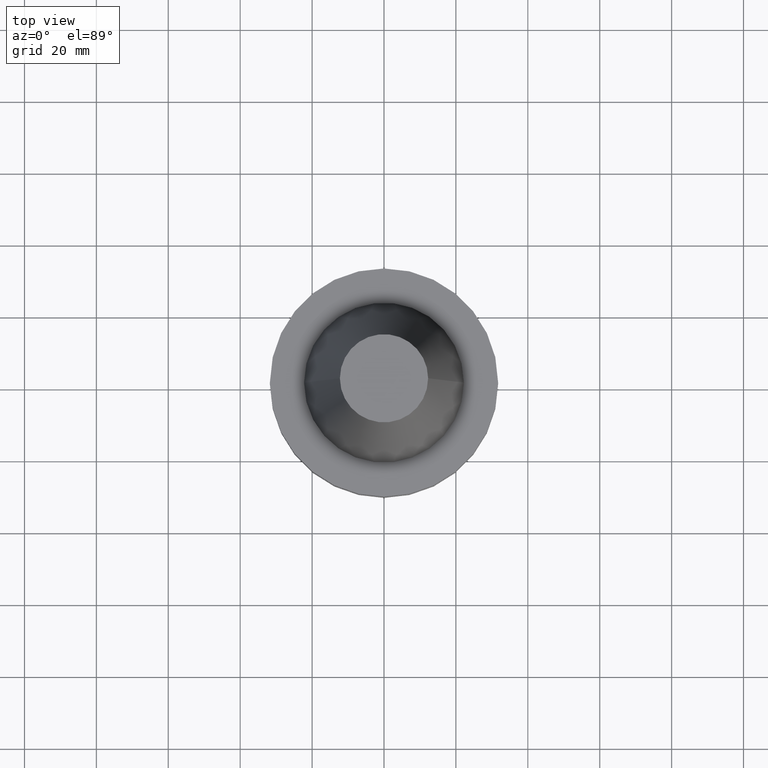
[diagram: clean part render]
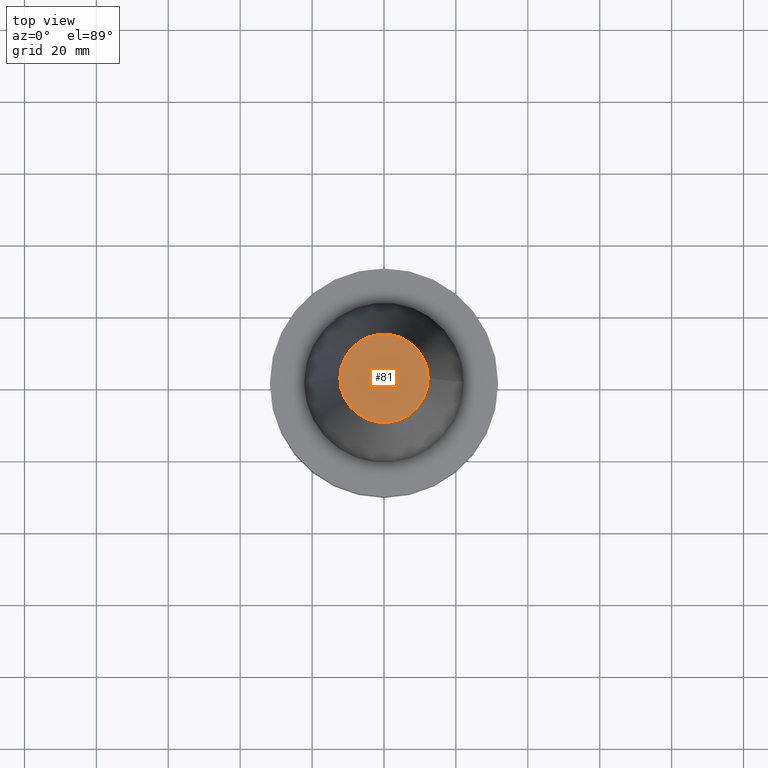
[diagram: same view with one face highlighted and labeled with its STEP entity id]
A machine part, top view. The second image highlights one B-rep face of the part: STEP entity #81.
In plain terms, the highlighted planar face has unit normal (0, 0, -1).
Its self-contained STEP definition (entity closure, byte-faithful):
#7 = EDGE_CURVE ( 'NONE', #409, #34, #39, .T. ) ;
#9 = CIRCLE ( 'NONE', #568, 12.27178102086201150 ) ;
#34 = VERTEX_POINT ( 'NONE', #451 ) ;
#39 = CIRCLE ( 'NONE', #498, 12.27178102086201150 ) ;
#53 = CARTESIAN_POINT ( 'NONE',  ( -12.27178102086201150, 0.000000000000000000, 68.25000000000000000 ) ) ;
#79 = DIRECTION ( 'NONE',  ( -0.000000000000000000, -0.000000000000000000, 1.000000000000000000 ) ) ;
#81 = ADVANCED_FACE ( 'NONE', ( #771 ), #720, .F. ) ;
#120 = DIRECTION ( 'NONE',  ( -1.000000000000000000, 0.000000000000000000, -0.000000000000000000 ) ) ;
#210 = DIRECTION ( 'NONE',  ( 1.000000000000000000, 0.000000000000000000, 0.000000000000000000 ) ) ;
#258 = ORIENTED_EDGE ( 'NONE', *, *, #480, .T. ) ;
#344 = EDGE_LOOP ( 'NONE', ( #448, #258 ) ) ;
#409 = VERTEX_POINT ( 'NONE', #53 ) ;
#445 = CARTESIAN_POINT ( 'NONE',  ( 0.000000000000000000, 12.27178102086201150, 68.25000000000000000 ) ) ;
#448 = ORIENTED_EDGE ( 'NONE', *, *, #7, .T. ) ;
#451 = CARTESIAN_POINT ( 'NONE',  ( 12.27178102086201150, 2.112318622904291439E-15, 68.25000000000000000 ) ) ;
#453 = DIRECTION ( 'NONE',  ( -0.000000000000000000, -0.000000000000000000, 1.000000000000000000 ) ) ;
#480 = EDGE_CURVE ( 'NONE', #34, #409, #9, .T. ) ;
#498 = AXIS2_PLACEMENT_3D ( 'NONE', #518, #453, #850 ) ;
#518 = CARTESIAN_POINT ( 'NONE',  ( 0.000000000000000000, 0.000000000000000000, 68.25000000000000000 ) ) ;
#528 = CARTESIAN_POINT ( 'NONE',  ( 0.000000000000000000, 0.000000000000000000, 68.25000000000000000 ) ) ;
#568 = AXIS2_PLACEMENT_3D ( 'NONE', #528, #79, #210 ) ;
#637 = AXIS2_PLACEMENT_3D ( 'NONE', #445, #655, #120 ) ;
#655 = DIRECTION ( 'NONE',  ( 0.000000000000000000, 0.000000000000000000, -1.000000000000000000 ) ) ;
#720 = PLANE ( 'NONE',  #637 ) ;
#771 = FACE_OUTER_BOUND ( 'NONE', #344, .T. ) ;
#850 = DIRECTION ( 'NONE',  ( 1.000000000000000000, 0.000000000000000000, 0.000000000000000000 ) ) ;